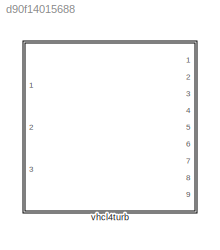
MODEL slx_d90f14015688
KIND library
CONFIG AbsTol = auto
CONFIG EnableMultiTasking = off
CONFIG FixedStep = auto
CONFIG MaxStep = auto
CONFIG MinStep = auto
CONFIG RelTol = 1e-3
CONFIG SampleTimeConstraint = Unconstrained
CONFIG SolverName = VariableStepAuto
CONFIG StartTime = 0.0
CONFIG StopTime = 10.0
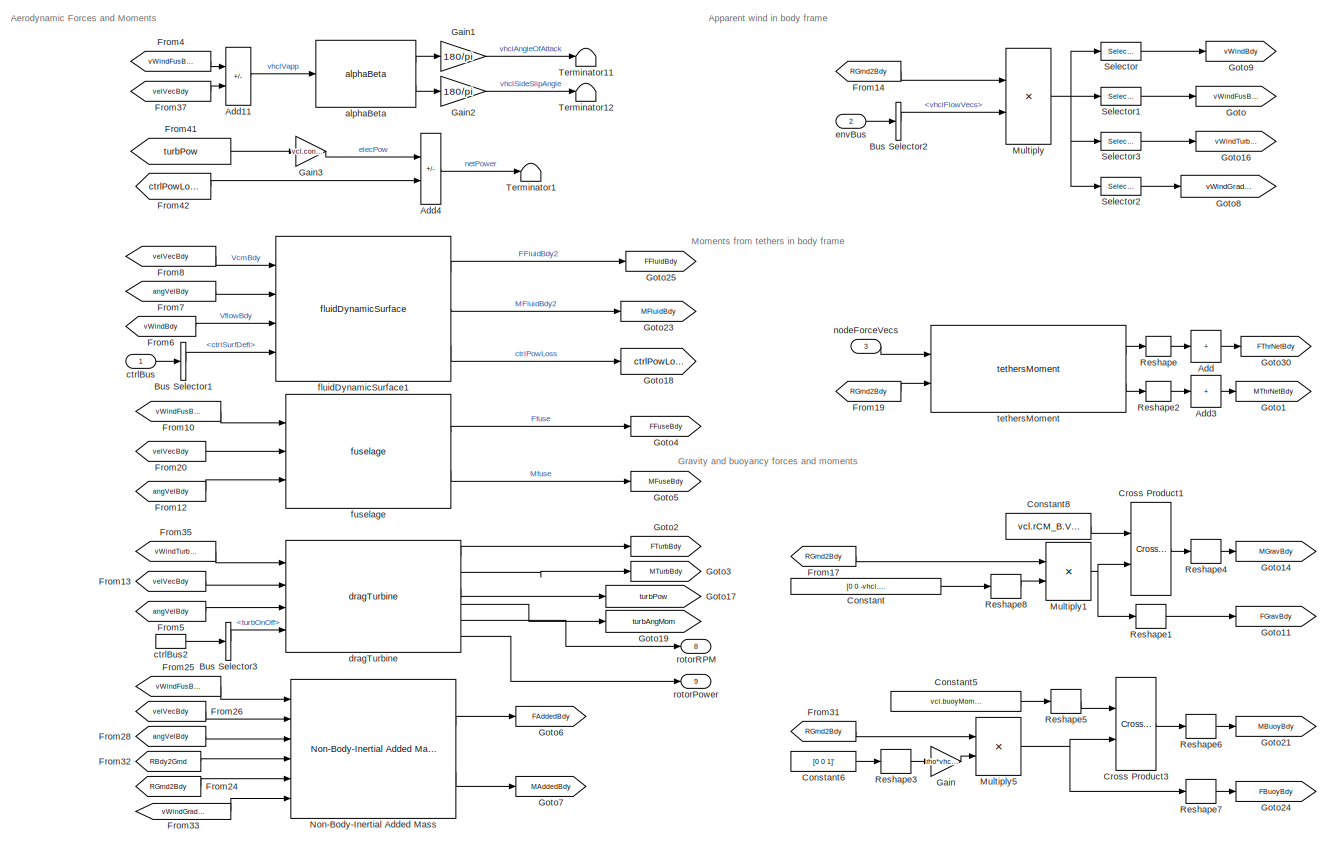
[diagram: vhcl4turb - part 1/2, full width, top band]
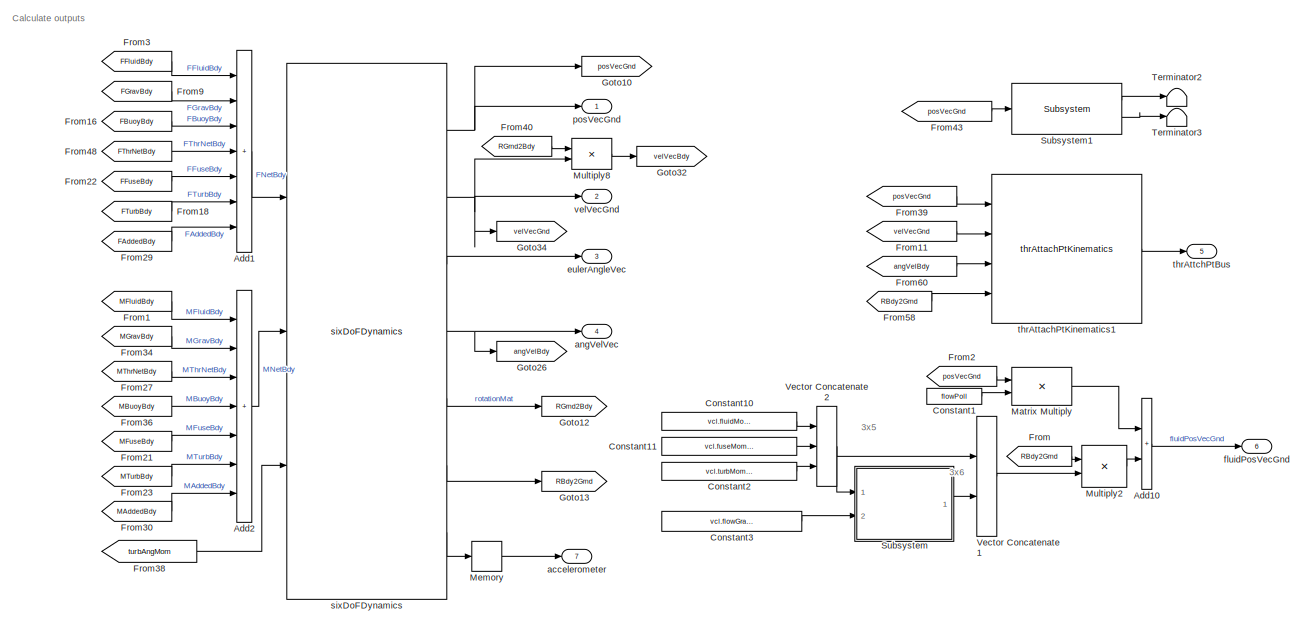
[diagram: vhcl4turb - part 2/2, full width, bottom band]
BLOCK [SubSystem] vhcl4turb
  Ports = [3, 9]
  RequestExecContextInheritance = off
  VariantControl = strcmpi(VEHICLE,'vehicleManta')
BLOCK [Sum] vhcl4turb/Add
  CollapseDim = 2
  CollapseMode = Specified dimension
  IconShape = rectangular
  Inputs = +
  Ports = [1, 1]
BLOCK [Sum] vhcl4turb/Add1
  IconShape = rectangular
  Inputs = +++++++
  Ports = [7, 1]
BLOCK [Sum] vhcl4turb/Add10
  IconShape = rectangular
  Ports = [2, 1]
BLOCK [Sum] vhcl4turb/Add11
  IconShape = rectangular
  Inputs = +-
  Ports = [2, 1]
BLOCK [Sum] vhcl4turb/Add2
  IconShape = rectangular
  Inputs = +++++++
  Ports = [7, 1]
BLOCK [Sum] vhcl4turb/Add3
  CollapseDim = 2
  CollapseMode = Specified dimension
  IconShape = rectangular
  Inputs = +
  Ports = [1, 1]
BLOCK [Sum] vhcl4turb/Add4
  IconShape = rectangular
  Inputs = +-
  Ports = [2, 1]
BLOCK [BusSelector] vhcl4turb/Bus Selector1
  OutputSignals = ctrlSurfDefl
  Ports = [1, 1]
BLOCK [BusSelector] vhcl4turb/Bus Selector2
  OutputSignals = vhclFlowVecs
  Ports = [1, 1]
BLOCK [BusSelector] vhcl4turb/Bus Selector3
  OutputSignals = turbOnOff
  Ports = [1, 1]
BLOCK [Constant] vhcl4turb/Constant
  Value = [0 0 -vhcl.mass.Value*grav]
BLOCK [Constant] vhcl4turb/Constant1
  Value = flowPoll
  VectorParams1D = off
BLOCK [Constant] vhcl4turb/Constant10
  Value = vcl.fluidMomentArms.Value
BLOCK [Constant] vhcl4turb/Constant11
  Value = vcl.fuseMomentArm.Value
BLOCK [Constant] vhcl4turb/Constant2
  Value = vcl.turbMomentArms.Value
BLOCK [Constant] vhcl4turb/Constant3
  Value = vcl.flowGradientDist.Value
BLOCK [Constant] vhcl4turb/Constant5
  Value = vcl.buoyMomentArm.Value
BLOCK [Constant] vhcl4turb/Constant6
  Value = [0 0 1]'
BLOCK [Constant] vhcl4turb/Constant8
  Value = vcl.rCM_B.Value
BLOCK [Reference] vhcl4turb/Cross Product1  REF=vrlib/Utilities/Cross Product
  Ports = [2, 1]
  SourceBlock = vrlib/Utilities/Cross Product
  SourceProductBaseCode = SL
  SourceType = Cross Product
BLOCK [Reference] vhcl4turb/Cross Product3  REF=vrlib/Utilities/Cross Product
  Ports = [2, 1]
  SourceBlock = vrlib/Utilities/Cross Product
  SourceProductBaseCode = SL
  SourceType = Cross Product
BLOCK [From] vhcl4turb/From
  GotoTag = RBdy2Grnd
BLOCK [From] vhcl4turb/From1
  GotoTag = MFluidBdy
BLOCK [From] vhcl4turb/From10
  GotoTag = vWindFusBdy
BLOCK [From] vhcl4turb/From11
  GotoTag = velVecGnd
BLOCK [From] vhcl4turb/From12
  GotoTag = angVelBdy
BLOCK [From] vhcl4turb/From13
  GotoTag = velVecBdy
BLOCK [From] vhcl4turb/From14
  GotoTag = RGrnd2Bdy
BLOCK [From] vhcl4turb/From16
  GotoTag = FBuoyBdy
BLOCK [From] vhcl4turb/From17
  GotoTag = RGrnd2Bdy
BLOCK [From] vhcl4turb/From18
  GotoTag = FTurbBdy
BLOCK [From] vhcl4turb/From19
  GotoTag = RGrnd2Bdy
BLOCK [From] vhcl4turb/From2
  GotoTag = posVecGnd
BLOCK [From] vhcl4turb/From20
  GotoTag = velVecBdy
BLOCK [From] vhcl4turb/From21
  GotoTag = MFuseBdy
BLOCK [From] vhcl4turb/From22
  GotoTag = FFuseBdy
BLOCK [From] vhcl4turb/From23
  GotoTag = MTurbBdy
BLOCK [From] vhcl4turb/From24
  GotoTag = RGrnd2Bdy
BLOCK [From] vhcl4turb/From25
  GotoTag = vWindFusBdy
BLOCK [From] vhcl4turb/From26
  GotoTag = velVecBdy
BLOCK [From] vhcl4turb/From27
  GotoTag = MThrNetBdy
BLOCK [From] vhcl4turb/From28
  GotoTag = angVelBdy
BLOCK [From] vhcl4turb/From29
  GotoTag = FAddedBdy
BLOCK [From] vhcl4turb/From3
  GotoTag = FFluidBdy
BLOCK [From] vhcl4turb/From30
  GotoTag = MAddedBdy
BLOCK [From] vhcl4turb/From31
  GotoTag = RGrnd2Bdy
BLOCK [From] vhcl4turb/From32
  GotoTag = RBdy2Grnd
BLOCK [From] vhcl4turb/From33
  GotoTag = vWindGradGrnd
BLOCK [From] vhcl4turb/From34
  GotoTag = MGravBdy
BLOCK [From] vhcl4turb/From35
  GotoTag = vWindTurbBdy
BLOCK [From] vhcl4turb/From36
  GotoTag = MBuoyBdy
BLOCK [From] vhcl4turb/From37
  GotoTag = velVecBdy
BLOCK [From] vhcl4turb/From38
  GotoTag = turbAngMom
BLOCK [From] vhcl4turb/From39
  GotoTag = posVecGnd
BLOCK [From] vhcl4turb/From4
  GotoTag = vWindFusBdy
BLOCK [From] vhcl4turb/From40
  GotoTag = RGrnd2Bdy
BLOCK [From] vhcl4turb/From41
  GotoTag = turbPow
BLOCK [From] vhcl4turb/From42
  GotoTag = ctrlPowLoss
BLOCK [From] vhcl4turb/From43
  GotoTag = posVecGnd
BLOCK [From] vhcl4turb/From48
  GotoTag = FThrNetBdy
BLOCK [From] vhcl4turb/From5
  GotoTag = angVelBdy
BLOCK [From] vhcl4turb/From58
  GotoTag = RBdy2Grnd
BLOCK [From] vhcl4turb/From6
  GotoTag = vWindBdy
BLOCK [From] vhcl4turb/From60
  GotoTag = angVelBdy
BLOCK [From] vhcl4turb/From7
  GotoTag = angVelBdy
BLOCK [From] vhcl4turb/From8
  GotoTag = velVecBdy
BLOCK [From] vhcl4turb/From9
  GotoTag = FGravBdy
BLOCK [Gain] vhcl4turb/Gain
  Gain = rho*vhcl.volume.Value*grav
BLOCK [Gain] vhcl4turb/Gain1
  Gain = 180/pi
BLOCK [Gain] vhcl4turb/Gain2
  Gain = 180/pi
BLOCK [Gain] vhcl4turb/Gain3
  Gain = vcl.convEfficiency.Value
BLOCK [Goto] vhcl4turb/Goto
  GotoTag = vWindFusBdy
BLOCK [Goto] vhcl4turb/Goto1
  GotoTag = MThrNetBdy
BLOCK [Goto] vhcl4turb/Goto10
  GotoTag = posVecGnd
BLOCK [Goto] vhcl4turb/Goto11
  GotoTag = FGravBdy
BLOCK [Goto] vhcl4turb/Goto12
  GotoTag = RGrnd2Bdy
BLOCK [Goto] vhcl4turb/Goto13
  GotoTag = RBdy2Grnd
BLOCK [Goto] vhcl4turb/Goto14
  GotoTag = MGravBdy
BLOCK [Goto] vhcl4turb/Goto16
  GotoTag = vWindTurbBdy
BLOCK [Goto] vhcl4turb/Goto17
  GotoTag = turbPow
BLOCK [Goto] vhcl4turb/Goto18
  GotoTag = ctrlPowLoss
BLOCK [Goto] vhcl4turb/Goto19
  GotoTag = turbAngMom
BLOCK [Goto] vhcl4turb/Goto2
  GotoTag = FTurbBdy
BLOCK [Goto] vhcl4turb/Goto21
  GotoTag = MBuoyBdy
BLOCK [Goto] vhcl4turb/Goto23
  GotoTag = MFluidBdy
BLOCK [Goto] vhcl4turb/Goto24
  GotoTag = FBuoyBdy
BLOCK [Goto] vhcl4turb/Goto25
  GotoTag = FFluidBdy
BLOCK [Goto] vhcl4turb/Goto26
  GotoTag = angVelBdy
BLOCK [Goto] vhcl4turb/Goto3
  GotoTag = MTurbBdy
BLOCK [Goto] vhcl4turb/Goto30
  GotoTag = FThrNetBdy
BLOCK [Goto] vhcl4turb/Goto32
  GotoTag = velVecBdy
BLOCK [Goto] vhcl4turb/Goto34
  GotoTag = velVecGnd
BLOCK [Goto] vhcl4turb/Goto4
  GotoTag = FFuseBdy
BLOCK [Goto] vhcl4turb/Goto5
  GotoTag = MFuseBdy
BLOCK [Goto] vhcl4turb/Goto6
  GotoTag = FAddedBdy
BLOCK [Goto] vhcl4turb/Goto7
  GotoTag = MAddedBdy
BLOCK [Goto] vhcl4turb/Goto8
  GotoTag = vWindGradGrnd
BLOCK [Goto] vhcl4turb/Goto9
  GotoTag = vWindBdy
BLOCK [Product] vhcl4turb/Matrix Multiply
  Multiplication = Matrix(*)
  Ports = [2, 1]
BLOCK [Memory] vhcl4turb/Memory
BLOCK [Product] vhcl4turb/Multiply
  Multiplication = Matrix(*)
  Ports = [2, 1]
BLOCK [Product] vhcl4turb/Multiply1
  Multiplication = Matrix(*)
  Ports = [2, 1]
BLOCK [Product] vhcl4turb/Multiply2
  Multiplication = Matrix(*)
  Ports = [2, 1]
BLOCK [Product] vhcl4turb/Multiply5
  Multiplication = Matrix(*)
  Ports = [2, 1]
BLOCK [Product] vhcl4turb/Multiply8
  Multiplication = Matrix(*)
  Ports = [2, 1]
BLOCK [Reference] vhcl4turb/Non-Body-Inertial Added Mass  REF=addedMass_cl/Non-Body-Inertial Added Mass
  Ports = [6, 2]
  SourceBlock = addedMass_cl/Non-Body-Inertial Added Mass
BLOCK [Reshape] vhcl4turb/Reshape
  OutputDimensionality = Customize
  OutputDimensions = [3 vcl.numTethers.Value]
  Ports = [1, 1]
BLOCK [Reshape] vhcl4turb/Reshape1
  OutputDimensionality = Column vector (2-D)
  Ports = [1, 1]
BLOCK [Reshape] vhcl4turb/Reshape2
  OutputDimensionality = Customize
  OutputDimensions = [3 vcl.numTethers.Value]
  Ports = [1, 1]
BLOCK [Reshape] vhcl4turb/Reshape3
  OutputDimensionality = Column vector (2-D)
  Ports = [1, 1]
BLOCK [Reshape] vhcl4turb/Reshape4
  OutputDimensionality = Column vector (2-D)
  Ports = [1, 1]
BLOCK [Reshape] vhcl4turb/Reshape5
  OutputDimensionality = Column vector (2-D)
  Ports = [1, 1]
BLOCK [Reshape] vhcl4turb/Reshape6
  OutputDimensionality = Column vector (2-D)
  Ports = [1, 1]
BLOCK [Reshape] vhcl4turb/Reshape7
  OutputDimensionality = Column vector (2-D)
  Ports = [1, 1]
BLOCK [Reshape] vhcl4turb/Reshape8
  OutputDimensionality = Column vector (2-D)
  Ports = [1, 1]
BLOCK [Selector] vhcl4turb/Selector
  IndexOptions = Select all,Index vector (dialog)
  Indices = [1 3],1:4
  InputPortWidth = 3
  NumberOfDimensions = 2
  OutputSizes = 1,1
  Ports = [1, 1]
BLOCK [Selector] vhcl4turb/Selector1
  IndexOptions = Select all,Index vector (dialog)
  Indices = [1 3],5
  InputPortWidth = 3
  NumberOfDimensions = 2
  OutputSizes = 1,1
  Ports = [1, 1]
BLOCK [Selector] vhcl4turb/Selector2
  IndexOptions = Select all,Index vector (dialog)
  Indices = [1 3],gradInd
  InputPortWidth = 3
  NumberOfDimensions = 2
  OutputSizes = 1,1
  Ports = [1, 1]
BLOCK [Selector] vhcl4turb/Selector3
  IndexOptions = Select all,Index vector (dialog)
  Indices = [1 3],turbInd
  InputPortWidth = 3
  NumberOfDimensions = 2
  OutputSizes = 1,1
  Ports = [1, 1]
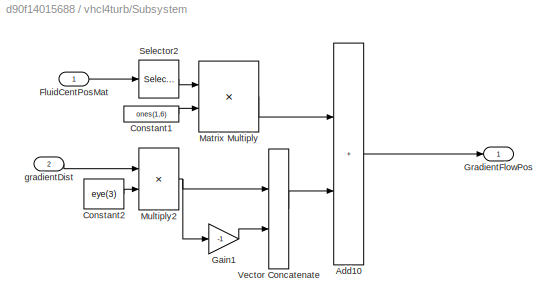
BLOCK [SubSystem] vhcl4turb/Subsystem
  Ports = [2, 1]
  RequestExecContextInheritance = off
BLOCK [Sum] vhcl4turb/Subsystem/Add10
  IconShape = rectangular
  Ports = [2, 1]
BLOCK [Constant] vhcl4turb/Subsystem/Constant1
  Value = ones(1,6)
  VectorParams1D = off
BLOCK [Constant] vhcl4turb/Subsystem/Constant2
  Value = eye(3)
BLOCK [Inport] vhcl4turb/Subsystem/FluidCentPosMat
BLOCK [Gain] vhcl4turb/Subsystem/Gain1
  Gain = -1
BLOCK [Outport] vhcl4turb/Subsystem/GradientFlowPos
  VectorParamsAs1DForOutWhenUnconnected = off
BLOCK [Product] vhcl4turb/Subsystem/Matrix Multiply
  Multiplication = Matrix(*)
  Ports = [2, 1]
BLOCK [Product] vhcl4turb/Subsystem/Multiply2
  Ports = [2, 1]
BLOCK [Selector] vhcl4turb/Subsystem/Selector2
  IndexOptions = Select all,Index vector (dialog)
  Indices = [1 3],5
  InputPortWidth = 3
  NumberOfDimensions = 2
  OutputSizes = 1,1
  Ports = [1, 1]
BLOCK [Concatenate] vhcl4turb/Subsystem/Vector Concatenate
  ConcatenateDimension = 2
  Mode = Multidimensional array
  Ports = [2, 1]
BLOCK [Inport] vhcl4turb/Subsystem/gradientDist
  Port = 2
BLOCK [Reference] vhcl4turb/Subsystem1  REF=pathFollowingCtrlAoATurbDiscrete_cl/pathFollowingCtrlAoATurbDiscrete/Subsystem
  Ports = [1, 2]
  SourceBlock = pathFollowingCtrlAoATurbDiscrete_cl/pathFollowingCtrlAoATurbDiscrete/Subsystem
BLOCK [Terminator] vhcl4turb/Terminator1
BLOCK [Terminator] vhcl4turb/Terminator11
BLOCK [Terminator] vhcl4turb/Terminator12
BLOCK [Terminator] vhcl4turb/Terminator2
BLOCK [Terminator] vhcl4turb/Terminator3
BLOCK [Concatenate] vhcl4turb/Vector Concatenate1
  ConcatenateDimension = 2
  Mode = Multidimensional array
  Ports = [2, 1]
BLOCK [Concatenate] vhcl4turb/Vector Concatenate2
  ConcatenateDimension = 2
  Mode = Multidimensional array
  NumInputs = 3
  Ports = [3, 1]
BLOCK [Outport] vhcl4turb/accelerometer
  Port = 7
BLOCK [Reference] vhcl4turb/alphaBeta  REF=alphaBeta_ul/alphaBeta
  Ports = [1, 2]
  SourceBlock = alphaBeta_ul/alphaBeta
  SourceType = SubSystem
BLOCK [Outport] vhcl4turb/angVelVec
  Port = 4
  VectorParamsAs1DForOutWhenUnconnected = off
BLOCK [Inport] vhcl4turb/ctrlBus
  OutDataTypeStr = Bus: fltCtrlBus
BLOCK [InportShadow] vhcl4turb/ctrlBus2
  OutDataTypeStr = Bus: fltCtrlBus
BLOCK [Reference] vhcl4turb/dragTurbine  REF=dragTurbine/dragTurbine
  Ports = [4, 6]
  SourceBlock = dragTurbine/dragTurbine
BLOCK [Inport] vhcl4turb/envBus
  OutDataTypeStr = Bus: envBus
  Port = 2
BLOCK [Outport] vhcl4turb/eulerAngleVec
  Port = 3
  VectorParamsAs1DForOutWhenUnconnected = off
BLOCK [Reference] vhcl4turb/fluidDynamicSurface1  REF=Copy_of_fluidDynamicSurface_cl/fluidDynamicSurface
  Ports = [4, 3]
  SourceBlock = Copy_of_fluidDynamicSurface_cl/fluidDynamicSurface
BLOCK [Outport] vhcl4turb/fluidPosVecGnd
  Port = 6
  VectorParamsAs1DForOutWhenUnconnected = off
BLOCK [Reference] vhcl4turb/fuselage  REF=fuselage_cl/fuselage  (lib defined in slx_45091b95913d, slx_54a95fec013f)
  Ports = [3, 2]
  SourceBlock = fuselage_cl/fuselage
  SourceType = SubSystem
BLOCK [Inport] vhcl4turb/nodeForceVecs
  Port = 3
BLOCK [Outport] vhcl4turb/posVecGnd
  VectorParamsAs1DForOutWhenUnconnected = off
BLOCK [Outport] vhcl4turb/rotorPower
  Port = 9
BLOCK [Outport] vhcl4turb/rotorRPM
  Port = 8
BLOCK [Reference] vhcl4turb/sixDoFDynamics  REF=sixDoFDynamics_cl/sixDoFDynamics
  Ports = [3, 7]
  SourceBlock = sixDoFDynamics_cl/sixDoFDynamics
BLOCK [Reference] vhcl4turb/tethersMoment  REF=tethersMoment_cl/tethersMoment
  Ports = [2, 2]
  SourceBlock = tethersMoment_cl/tethersMoment
BLOCK [Reference] vhcl4turb/thrAttachPtKinematics1  REF=thrAttachPtKinematics_ul/thrAttachPtKinematics
  Ports = [4, 1]
  SourceBlock = thrAttachPtKinematics_ul/thrAttachPtKinematics
BLOCK [Outport] vhcl4turb/thrAttchPtBus
  Port = 5
  VectorParamsAs1DForOutWhenUnconnected = off
BLOCK [Outport] vhcl4turb/velVecGnd
  Port = 2
  VectorParamsAs1DForOutWhenUnconnected = off
ANNOTATION vhcl4turb: 3x5
ANNOTATION vhcl4turb: 3x6
ANNOTATION vhcl4turb: Aerodynamic Forces and Moments
ANNOTATION vhcl4turb: Apparent wind in body frame
ANNOTATION vhcl4turb: Calculate outputs
ANNOTATION vhcl4turb: Gravity and buoyancy forces and moments
ANNOTATION vhcl4turb: Moments from tethers in body frame
LINE vhcl4turb/Add10:1 -> vhcl4turb/fluidPosVecGnd:1
LINE vhcl4turb/Add11:1 -> vhcl4turb/alphaBeta:1
LINE vhcl4turb/Add1:1 -> vhcl4turb/sixDoFDynamics:1
LINE vhcl4turb/Add2:1 -> vhcl4turb/sixDoFDynamics:2
LINE vhcl4turb/Add3:1 -> vhcl4turb/Goto1:1
LINE vhcl4turb/Add4:1 -> vhcl4turb/Terminator1:1
LINE vhcl4turb/Add:1 -> vhcl4turb/Goto30:1
LINE vhcl4turb/Bus Selector1:1 -> vhcl4turb/fluidDynamicSurface1:4
LINE vhcl4turb/Bus Selector2:1 -> vhcl4turb/Multiply:2
LINE vhcl4turb/Bus Selector3:1 -> vhcl4turb/dragTurbine:4
LINE vhcl4turb/Constant10:1 -> vhcl4turb/Vector Concatenate2:1
LINE vhcl4turb/Constant11:1 -> vhcl4turb/Vector Concatenate2:2
LINE vhcl4turb/Constant1:1 -> vhcl4turb/Matrix Multiply:2
LINE vhcl4turb/Constant2:1 -> vhcl4turb/Vector Concatenate2:3
LINE vhcl4turb/Constant3:1 -> vhcl4turb/Subsystem:2
LINE vhcl4turb/Constant5:1 -> vhcl4turb/Reshape5:1
LINE vhcl4turb/Constant6:1 -> vhcl4turb/Reshape3:1
LINE vhcl4turb/Constant8:1 -> vhcl4turb/Cross Product1:1
LINE vhcl4turb/Constant:1 -> vhcl4turb/Reshape8:1
LINE vhcl4turb/Cross Product1:1 -> vhcl4turb/Reshape4:1
LINE vhcl4turb/Cross Product3:1 -> vhcl4turb/Reshape6:1
LINE vhcl4turb/From10:1 -> vhcl4turb/fuselage:1
LINE vhcl4turb/From11:1 -> vhcl4turb/thrAttachPtKinematics1:2
LINE vhcl4turb/From12:1 -> vhcl4turb/fuselage:3
LINE vhcl4turb/From13:1 -> vhcl4turb/dragTurbine:2
LINE vhcl4turb/From14:1 -> vhcl4turb/Multiply:1
LINE vhcl4turb/From16:1 -> vhcl4turb/Add1:3
LINE vhcl4turb/From17:1 -> vhcl4turb/Multiply1:1
LINE vhcl4turb/From18:1 -> vhcl4turb/Add1:6
LINE vhcl4turb/From19:1 -> vhcl4turb/tethersMoment:2
LINE vhcl4turb/From1:1 -> vhcl4turb/Add2:1
LINE vhcl4turb/From20:1 -> vhcl4turb/fuselage:2
LINE vhcl4turb/From21:1 -> vhcl4turb/Add2:5
LINE vhcl4turb/From22:1 -> vhcl4turb/Add1:5
LINE vhcl4turb/From23:1 -> vhcl4turb/Add2:6
LINE vhcl4turb/From24:1 -> vhcl4turb/Non-Body-Inertial Added Mass:5
LINE vhcl4turb/From25:1 -> vhcl4turb/Non-Body-Inertial Added Mass:1
LINE vhcl4turb/From26:1 -> vhcl4turb/Non-Body-Inertial Added Mass:2
LINE vhcl4turb/From27:1 -> vhcl4turb/Add2:3
LINE vhcl4turb/From28:1 -> vhcl4turb/Non-Body-Inertial Added Mass:3
LINE vhcl4turb/From29:1 -> vhcl4turb/Add1:7
LINE vhcl4turb/From2:1 -> vhcl4turb/Matrix Multiply:1
LINE vhcl4turb/From30:1 -> vhcl4turb/Add2:7
LINE vhcl4turb/From31:1 -> vhcl4turb/Multiply5:1
LINE vhcl4turb/From32:1 -> vhcl4turb/Non-Body-Inertial Added Mass:4
LINE vhcl4turb/From33:1 -> vhcl4turb/Non-Body-Inertial Added Mass:6
LINE vhcl4turb/From34:1 -> vhcl4turb/Add2:2
LINE vhcl4turb/From35:1 -> vhcl4turb/dragTurbine:1
LINE vhcl4turb/From36:1 -> vhcl4turb/Add2:4
LINE vhcl4turb/From37:1 -> vhcl4turb/Add11:2
LINE vhcl4turb/From38:1 -> vhcl4turb/sixDoFDynamics:3
LINE vhcl4turb/From39:1 -> vhcl4turb/thrAttachPtKinematics1:1
LINE vhcl4turb/From3:1 -> vhcl4turb/Add1:1
LINE vhcl4turb/From40:1 -> vhcl4turb/Multiply8:1
LINE vhcl4turb/From41:1 -> vhcl4turb/Gain3:1
LINE vhcl4turb/From42:1 -> vhcl4turb/Add4:2
LINE vhcl4turb/From43:1 -> vhcl4turb/Subsystem1:1
LINE vhcl4turb/From48:1 -> vhcl4turb/Add1:4
LINE vhcl4turb/From4:1 -> vhcl4turb/Add11:1
LINE vhcl4turb/From58:1 -> vhcl4turb/thrAttachPtKinematics1:4
LINE vhcl4turb/From5:1 -> vhcl4turb/dragTurbine:3
LINE vhcl4turb/From60:1 -> vhcl4turb/thrAttachPtKinematics1:3
LINE vhcl4turb/From6:1 -> vhcl4turb/fluidDynamicSurface1:3
LINE vhcl4turb/From7:1 -> vhcl4turb/fluidDynamicSurface1:2
LINE vhcl4turb/From8:1 -> vhcl4turb/fluidDynamicSurface1:1
LINE vhcl4turb/From9:1 -> vhcl4turb/Add1:2
LINE vhcl4turb/From:1 -> vhcl4turb/Multiply2:1
LINE vhcl4turb/Gain1:1 -> vhcl4turb/Terminator11:1
LINE vhcl4turb/Gain2:1 -> vhcl4turb/Terminator12:1
LINE vhcl4turb/Gain3:1 -> vhcl4turb/Add4:1
LINE vhcl4turb/Gain:1 -> vhcl4turb/Multiply5:2
LINE vhcl4turb/Matrix Multiply:1 -> vhcl4turb/Add10:1
LINE vhcl4turb/Memory:1 -> vhcl4turb/accelerometer:1
NET vhcl4turb/Multiply1:1 -> vhcl4turb/Cross Product1:2, vhcl4turb/Reshape1:1
LINE vhcl4turb/Multiply2:1 -> vhcl4turb/Add10:2
NET vhcl4turb/Multiply5:1 -> vhcl4turb/Cross Product3:2, vhcl4turb/Reshape7:1
LINE vhcl4turb/Multiply8:1 -> vhcl4turb/Goto32:1
NET vhcl4turb/Multiply:1 -> vhcl4turb/Selector1:1, vhcl4turb/Selector2:1, vhcl4turb/Selector3:1, vhcl4turb/Selector:1
LINE vhcl4turb/Non-Body-Inertial Added Mass:1 -> vhcl4turb/Goto6:1
LINE vhcl4turb/Non-Body-Inertial Added Mass:2 -> vhcl4turb/Goto7:1
LINE vhcl4turb/Reshape1:1 -> vhcl4turb/Goto11:1
LINE vhcl4turb/Reshape2:1 -> vhcl4turb/Add3:1
LINE vhcl4turb/Reshape3:1 -> vhcl4turb/Gain:1
LINE vhcl4turb/Reshape4:1 -> vhcl4turb/Goto14:1
LINE vhcl4turb/Reshape5:1 -> vhcl4turb/Cross Product3:1
LINE vhcl4turb/Reshape6:1 -> vhcl4turb/Goto21:1
LINE vhcl4turb/Reshape7:1 -> vhcl4turb/Goto24:1
LINE vhcl4turb/Reshape8:1 -> vhcl4turb/Multiply1:2
LINE vhcl4turb/Reshape:1 -> vhcl4turb/Add:1
LINE vhcl4turb/Selector1:1 -> vhcl4turb/Goto:1
LINE vhcl4turb/Selector2:1 -> vhcl4turb/Goto8:1
LINE vhcl4turb/Selector3:1 -> vhcl4turb/Goto16:1
LINE vhcl4turb/Selector:1 -> vhcl4turb/Goto9:1
LINE vhcl4turb/Subsystem/Add10:1 -> vhcl4turb/Subsystem/GradientFlowPos:1
LINE vhcl4turb/Subsystem/Constant1:1 -> vhcl4turb/Subsystem/Matrix Multiply:2
LINE vhcl4turb/Subsystem/Constant2:1 -> vhcl4turb/Subsystem/Multiply2:2
LINE vhcl4turb/Subsystem/FluidCentPosMat:1 -> vhcl4turb/Subsystem/Selector2:1
LINE vhcl4turb/Subsystem/Gain1:1 -> vhcl4turb/Subsystem/Vector Concatenate:2
LINE vhcl4turb/Subsystem/Matrix Multiply:1 -> vhcl4turb/Subsystem/Add10:1
NET vhcl4turb/Subsystem/Multiply2:1 -> vhcl4turb/Subsystem/Gain1:1, vhcl4turb/Subsystem/Vector Concatenate:1
LINE vhcl4turb/Subsystem/Selector2:1 -> vhcl4turb/Subsystem/Matrix Multiply:1
LINE vhcl4turb/Subsystem/Vector Concatenate:1 -> vhcl4turb/Subsystem/Add10:2
LINE vhcl4turb/Subsystem/gradientDist:1 -> vhcl4turb/Subsystem/Multiply2:1
LINE vhcl4turb/Subsystem1:1 -> vhcl4turb/Terminator2:1
LINE vhcl4turb/Subsystem1:2 -> vhcl4turb/Terminator3:1
LINE vhcl4turb/Subsystem:1 -> vhcl4turb/Vector Concatenate1:2
LINE vhcl4turb/Vector Concatenate1:1 -> vhcl4turb/Multiply2:2
NET vhcl4turb/Vector Concatenate2:1 -> vhcl4turb/Subsystem:1, vhcl4turb/Vector Concatenate1:1
LINE vhcl4turb/alphaBeta:1 -> vhcl4turb/Gain1:1
LINE vhcl4turb/alphaBeta:2 -> vhcl4turb/Gain2:1
LINE vhcl4turb/ctrlBus2:1 -> vhcl4turb/Bus Selector3:1
LINE vhcl4turb/ctrlBus:1 -> vhcl4turb/Bus Selector1:1
LINE vhcl4turb/dragTurbine:1 -> vhcl4turb/Goto2:1
LINE vhcl4turb/dragTurbine:2 -> vhcl4turb/Goto3:1
LINE vhcl4turb/dragTurbine:3 -> vhcl4turb/Goto17:1
LINE vhcl4turb/dragTurbine:4 -> vhcl4turb/Goto19:1
LINE vhcl4turb/dragTurbine:5 -> vhcl4turb/rotorRPM:1
LINE vhcl4turb/dragTurbine:6 -> vhcl4turb/rotorPower:1
LINE vhcl4turb/envBus:1 -> vhcl4turb/Bus Selector2:1
LINE vhcl4turb/fluidDynamicSurface1:1 -> vhcl4turb/Goto25:1
LINE vhcl4turb/fluidDynamicSurface1:2 -> vhcl4turb/Goto23:1
LINE vhcl4turb/fluidDynamicSurface1:3 -> vhcl4turb/Goto18:1
LINE vhcl4turb/fuselage:1 -> vhcl4turb/Goto4:1
LINE vhcl4turb/fuselage:2 -> vhcl4turb/Goto5:1
LINE vhcl4turb/nodeForceVecs:1 -> vhcl4turb/tethersMoment:1
NET vhcl4turb/sixDoFDynamics:1 -> vhcl4turb/Goto10:1, vhcl4turb/posVecGnd:1
NET vhcl4turb/sixDoFDynamics:2 -> vhcl4turb/Goto34:1, vhcl4turb/Multiply8:2, vhcl4turb/velVecGnd:1
LINE vhcl4turb/sixDoFDynamics:3 -> vhcl4turb/eulerAngleVec:1
NET vhcl4turb/sixDoFDynamics:4 -> vhcl4turb/Goto26:1, vhcl4turb/angVelVec:1
LINE vhcl4turb/sixDoFDynamics:5 -> vhcl4turb/Goto12:1
LINE vhcl4turb/sixDoFDynamics:6 -> vhcl4turb/Goto13:1
LINE vhcl4turb/sixDoFDynamics:7 -> vhcl4turb/Memory:1
LINE vhcl4turb/tethersMoment:1 -> vhcl4turb/Reshape:1
LINE vhcl4turb/tethersMoment:2 -> vhcl4turb/Reshape2:1
LINE vhcl4turb/thrAttachPtKinematics1:1 -> vhcl4turb/thrAttchPtBus:1
note: NET lines group one-source signal fan-out (src -> all destinations, sorted); 1:1 wires keep LINE
